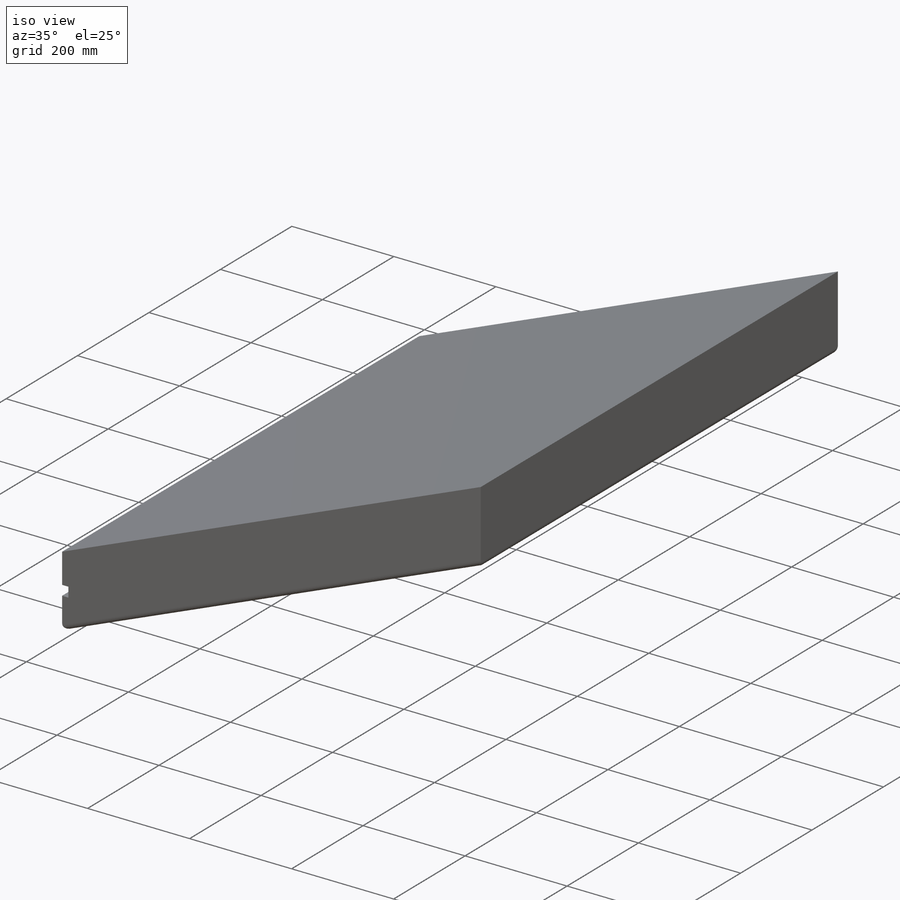
[diagram: iso view]
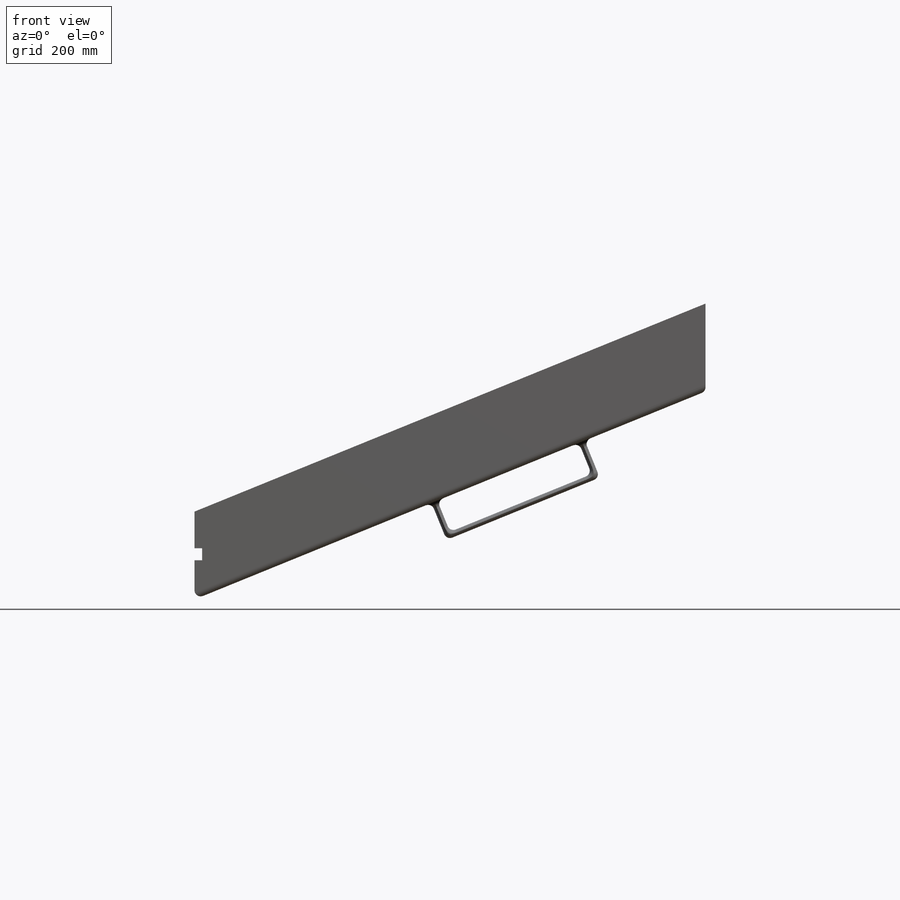
[diagram: front view]
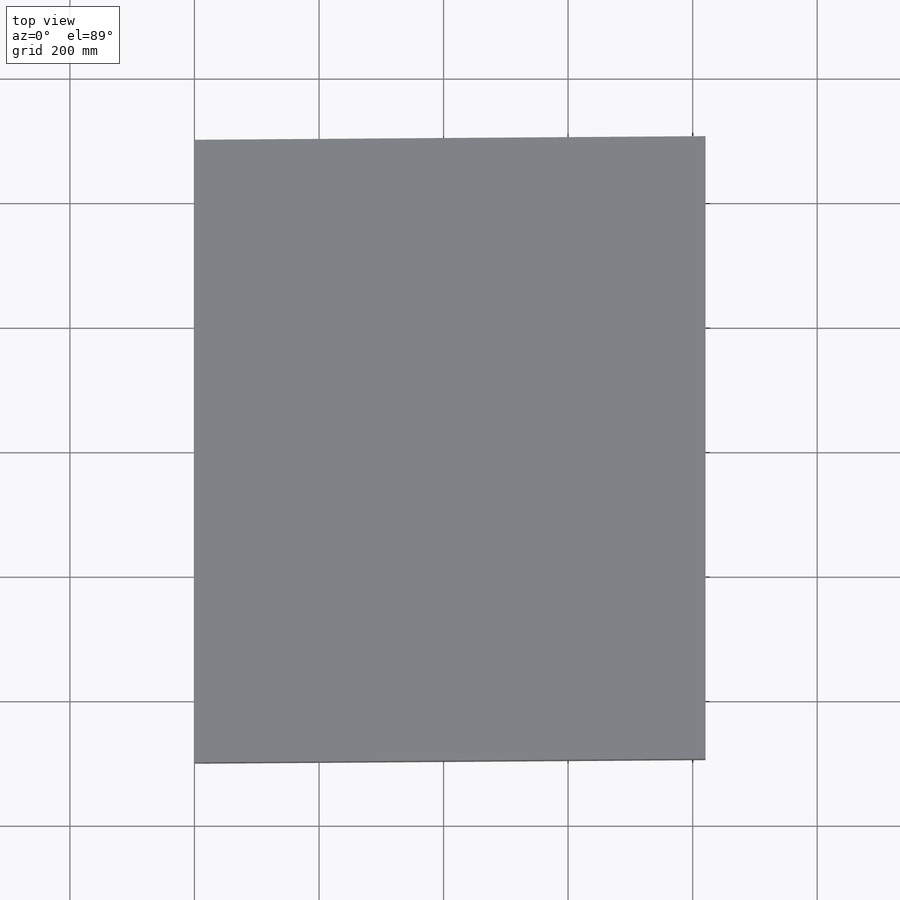
[diagram: top view]
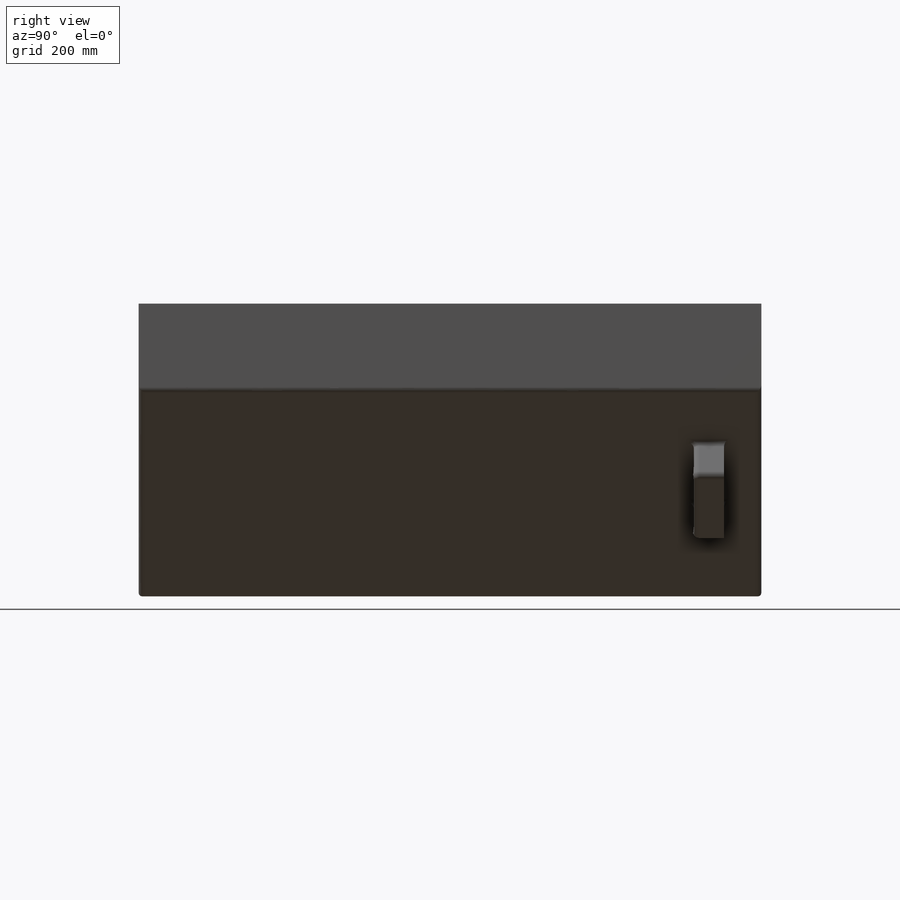
[diagram: right view]
SOLIDWORKS PART (.sldprt)
format: sldprt  version: not decoded by parser v0  size: 233,472 bytes
history: native  units: mm
features: sketch x3, extrude x3, fillet x2, material x1 (+11 scaffold rows collapsed)
feature tree (20):
  scaffold x11  (default folders/planes/origin — collapsed)
  material  "Material <not specified>"
  sketch  "Sketch1"  dims[c1.D1=~17.375456mm c1.D2=~10.756234mm c1.D3=60.0mm c1.D4=60.0mm c1.D5=~237.469763mm c2.D5=112.15deg c2.D6=820.0mm c2.D1=58.78mm c2.D2=62.96mm c2.D3=12.23mm c2.D4=19.3mm c3.D5=918.39mm c3.D6=~1050.785861mm c4.D6=112.15deg c4.D5=820.69mm]
  extrude  "Boss-Extrude4"  Depth=1000mm
  sketch  "Sketch6"  dims[D1=~162.638202mm]
  extrude  "Boss-Extrude8"  Depth=10mm
  sketch  "Sketch8"  dims[D2=10.0mm D1=10.0mm]
  extrude  "Boss-Extrude9"  Depth=50mm
  fillet  "Fillet1"  Radius=10mm
  fillet  "Fillet2"  Radius=10mm
decode coverage: 8 of 8 modeling features carry decoded parameters
note: ~ marks probable driven/reference dimensions
note: suppression state not decoded; provenance and decode notes live in map.json
